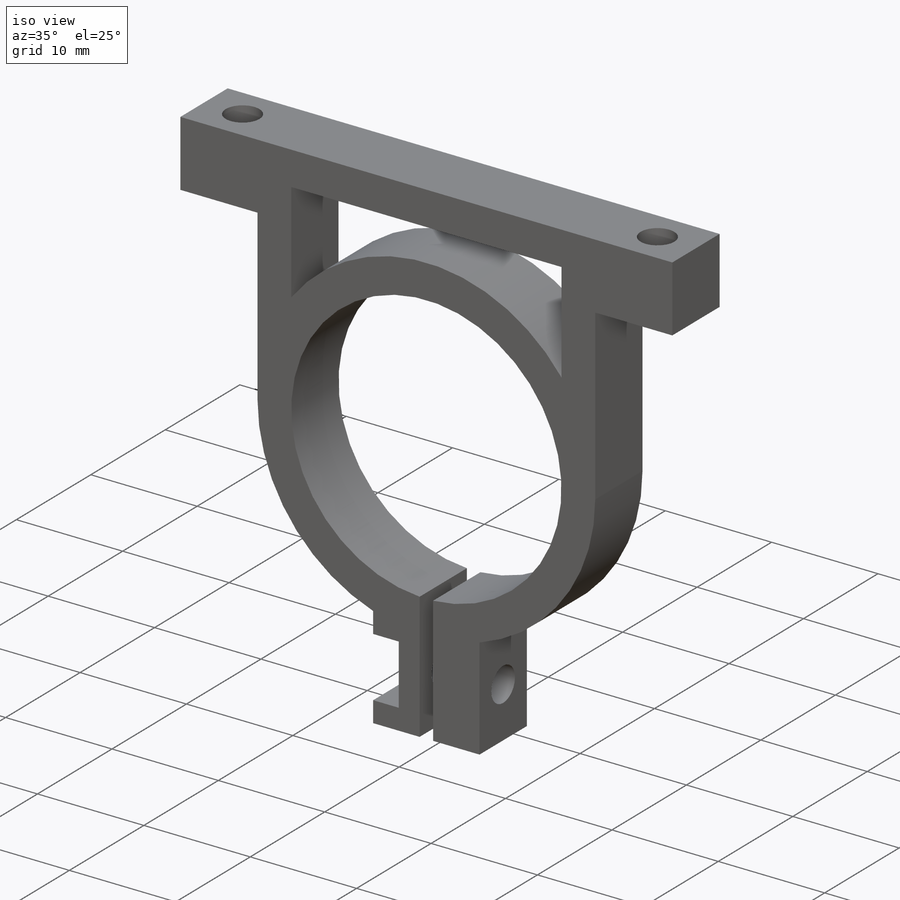
[diagram: iso view]
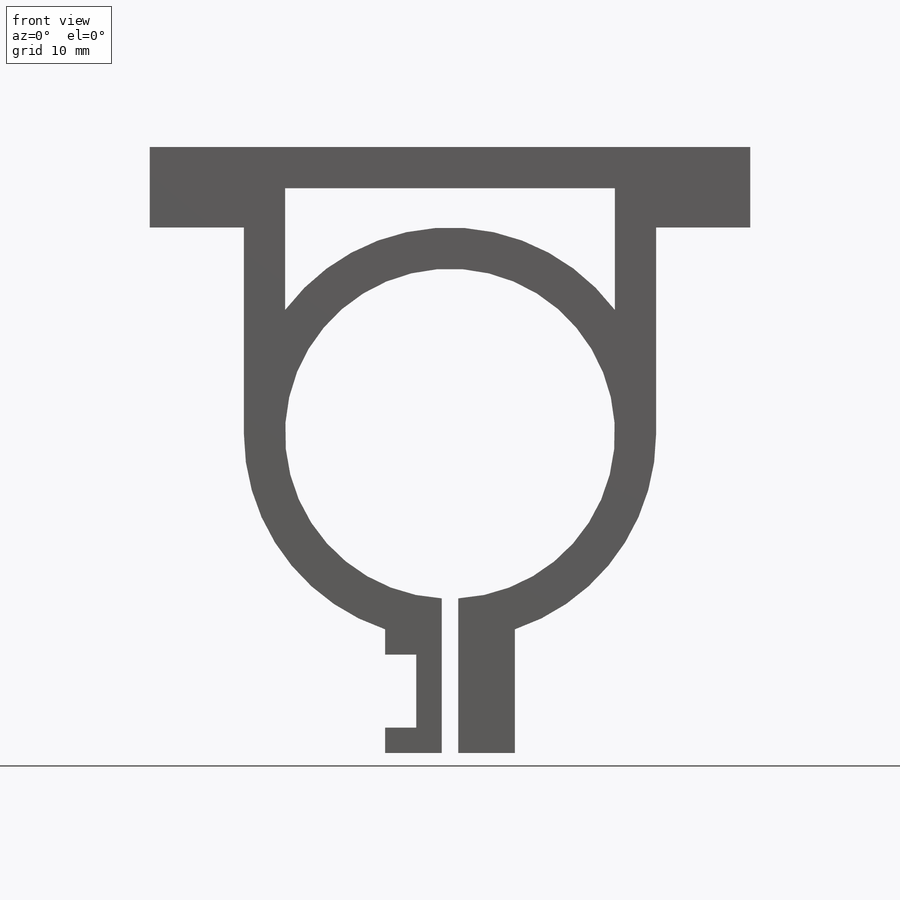
[diagram: front view]
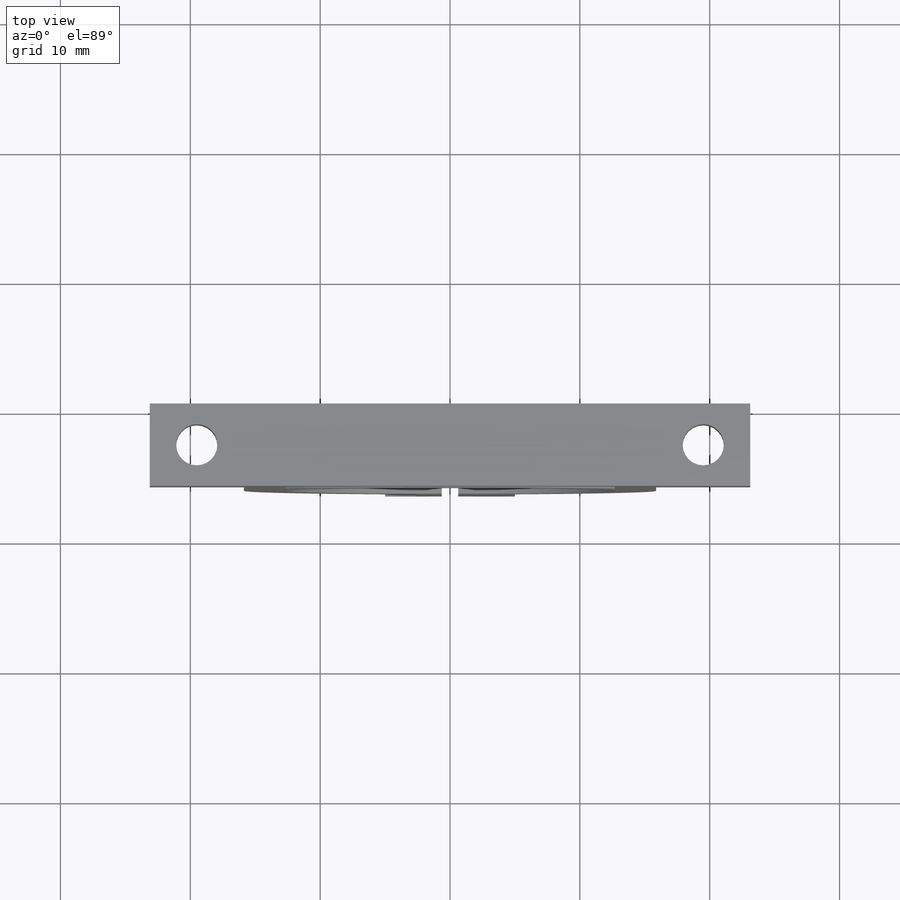
[diagram: top view]
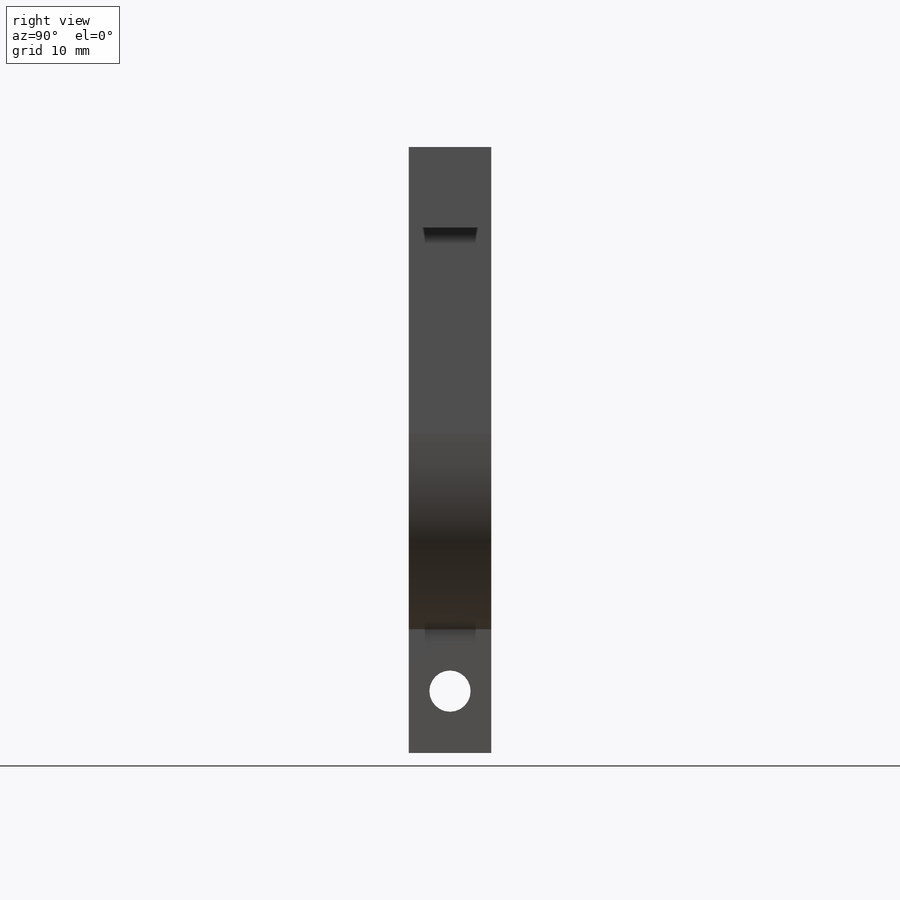
[diagram: right view]
SOLIDWORKS PART (.sldprt)
format: sldprt  version: not decoded by parser v0  size: 258,048 bytes
history: native  units: mm
features: sketch x6, cut_extrude x5, material x1, extrude x1 (+13 scaffold rows collapsed)
feature tree (26):
  scaffold x13  (default folders/planes/origin — collapsed)
  material  "Material <not specified>"
  sketch  "Profile Sketch"  dims[D1=25.4mm D2=3.175mm D3=6.2mm D4=46.25mm D5=9.525mm D6=10.0mm D7=5.0mm]
  extrude  "Profile Extrude"  Depth=6.35mm
  sketch  "Gap Sketch"  dims[D1=17.526mm D2=~17.15262mm D3=1.27mm]
  cut_extrude  "Gap Cut"  [1 undecoded]
  sketch  "Crossbolt Hole Sketch"  dims[D1=3.175mm]
  cut_extrude  "Crossbolt Hole Cut"  [1 undecoded]
  sketch  "Nut Capture Pocket Sketch"  dims[D1=4.8mm D2=5.627mm]
  cut_extrude  "Nut Capture Pocket Cut"  [1 undecoded]
  sketch  "Mounting Hole Sketch"  dims[D1=3.175mm D2=3.175mm]
  cut_extrude  "Mounting Hole Cut"  [1 undecoded]
  sketch  "Lightening Pocket Sketch"  dims[D1=3.175mm D2=3.175mm D3=3.175mm D4=3.175mm]
  cut_extrude  "Lightening Pocket Cut"  [1 undecoded]
decode coverage: 7 of 12 modeling features carry decoded parameters
note: ~ marks probable driven/reference dimensions
note: 5 parameter values undecoded
summary: no parameter record found for 5 features
note: suppression state not decoded; provenance and decode notes live in map.json
